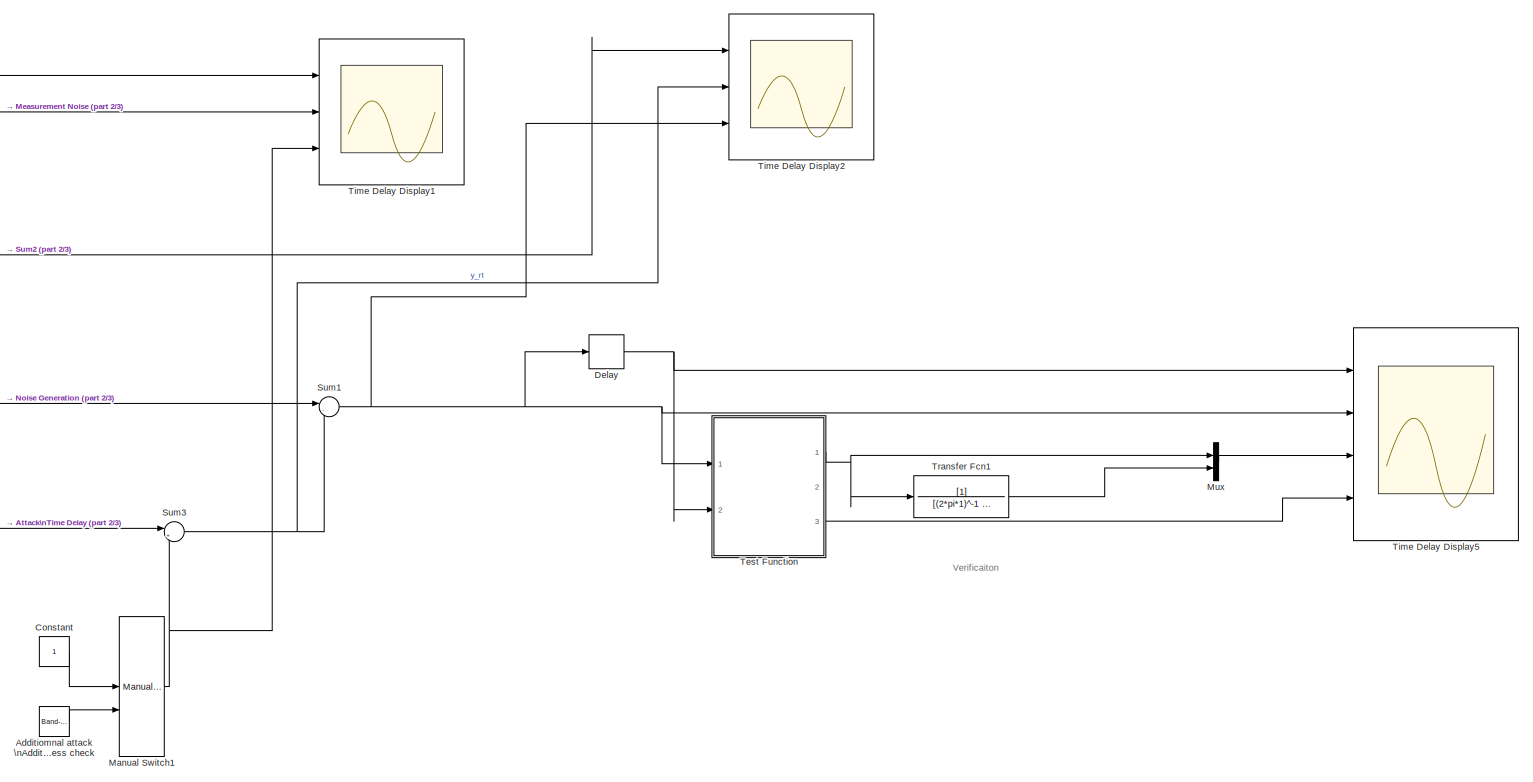
[diagram: root canvas - part 1/3, right side, full height]
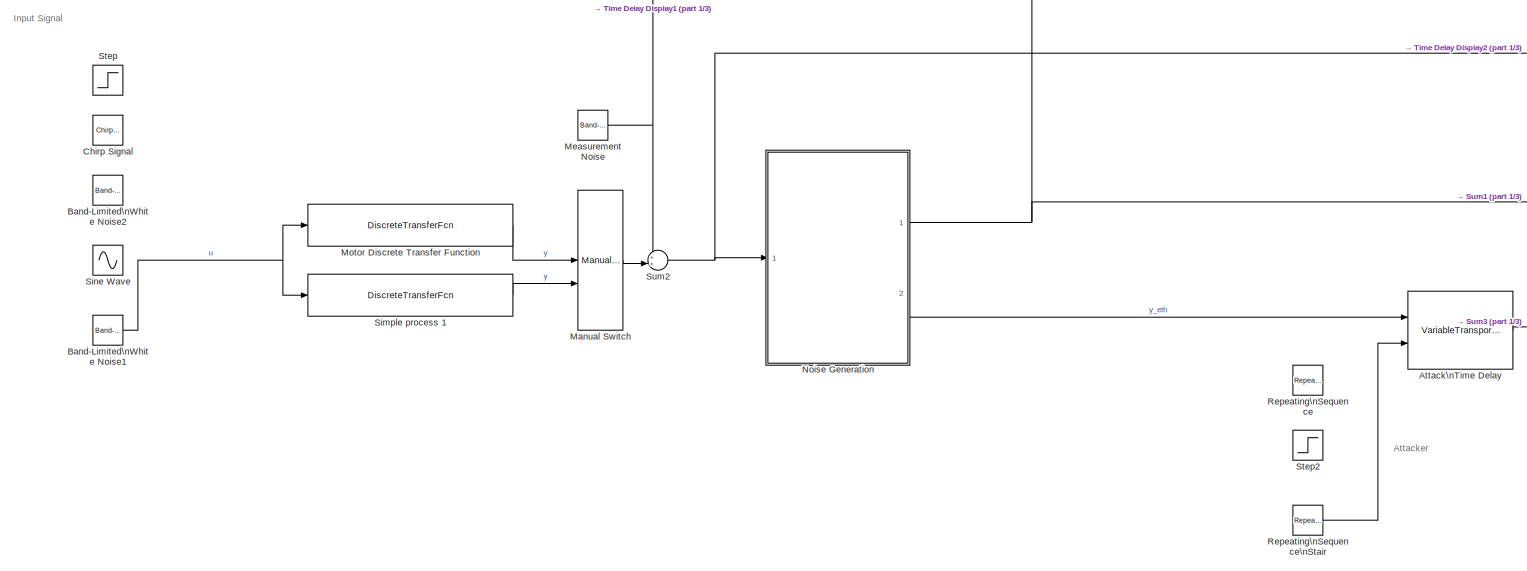
[diagram: root canvas - part 2/3, middle left region]
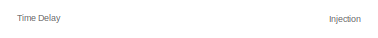
[diagram: root canvas - part 3/3, bottom center region]
MODEL simplified
KIND model
BLOCK [Reference] Additiomnal attack \nAdditive Noise \nRobustness check   REF=simulink/Sources/Band-Limited\nWhite Noise
  Cov = [1e-8]
  Ports = [0, 1]
  SID = 51
  SourceBlock = simulink/Sources/Band-Limited\nWhite Noise
  SourceType = Band-Limited White Noise.
  Ts = 1e-3
  VectorParams1D = on
  seed = [233241]
BLOCK [VariableTransportDelay] Attack\nTime Delay
  InitialOutput = 2e-3
  MaximumDelay = 100
  Ports = [2, 1]
  SID = 14
  ZeroDelay = on
BLOCK [Reference] Band-Limited\nWhite Noise1  REF=simulink/Sources/Band-Limited\nWhite Noise
  Cov = [1e-3]
  Ports = [0, 1]
  SID = 87
  SourceBlock = simulink/Sources/Band-Limited\nWhite Noise
  SourceType = Band-Limited White Noise.
  Ts = 1
  VectorParams1D = on
  seed = [23324]
BLOCK [Reference] Band-Limited\nWhite Noise2  REF=simulink/Sources/Band-Limited\nWhite Noise
  Cov = [1e-3]
  Ports = [0, 1]
  SID = 53
  SourceBlock = simulink/Sources/Band-Limited\nWhite Noise
  SourceType = Band-Limited White Noise.
  Ts = 1e-2
  VectorParams1D = on
  seed = [23324]
BLOCK [Reference] Chirp Signal  REF=simulink/Sources/Chirp Signal
  Ports = [0, 1]
  SID = 65
  SourceBlock = simulink/Sources/Chirp Signal
  SourceType = chirp
  T = 300
  VectorParams1D = on
  f1 = 0.1
  f2 = 20*pi
BLOCK [Constant] Constant
  SID = 96
BLOCK [Delay] Delay
  DelayLength = 1
  InitialCondition = 0
  InputPortMap = u0
  Ports = [1, 1]
  SID = 88
BLOCK [ManualSwitch] Manual Switch
  SID = 74
BLOCK [ManualSwitch] Manual Switch1
  SID = 95
BLOCK [Reference] Measurement Noise  REF=simulink/Sources/Band-Limited\nWhite Noise
  Cov = [1e-9]
  Ports = [0, 1]
  SID = 30
  SourceBlock = simulink/Sources/Band-Limited\nWhite Noise
  SourceType = Band-Limited White Noise.
  Ts = 1e-3
  VectorParams1D = on
  seed = [23341]
BLOCK [DiscreteTransferFcn] Motor Discrete Transfer Function
  Denominator = [1, -1.997, 0.997,- 1.184e-10]
  InputPortMap = u0
  Numerator = [4.99e-05, 5.875e-05, 2.081e-07]
  Ports = [1, 1]
  SID = 72
  SampleTime = 1e-3
BLOCK [Mux] Mux
  DisplayOption = bar
  Inputs = 2
  Ports = [2, 1]
  SID = 93
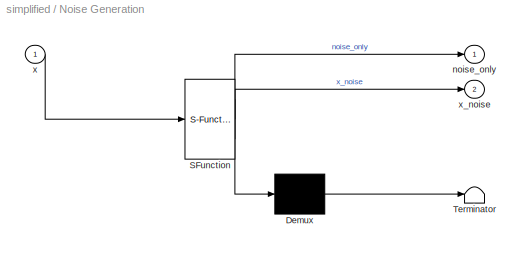
BLOCK [SubSystem] Noise Generation
  ErrorFcn = Stateflow.Translate.translate
  PermitHierarchicalResolution = ParametersOnly
  Ports = [1, 2]
  RequestExecContextInheritance = off
  SFBlockType = MATLAB Function
  SID = 80
  TreatAsAtomicUnit = on
  Variant = off
BLOCK [Demux] Noise Generation/ Demux 
  Outputs = 1
  Ports = [1, 1]
  SID = 80::20
BLOCK [S-Function] Noise Generation/ SFunction 
  EnableBusSupport = on
  FunctionName = sf_sfun
  PortCounts = [1 3]
  Ports = [1, 3]
  SFunctionDeploymentMode = off
  SID = 80::19
  Tag = Stateflow S-Function simplified 1
BLOCK [Terminator] Noise Generation/ Terminator 
  SID = 80::21
BLOCK [Outport] Noise Generation/noise_only
  IconDisplay = Port number
  SID = 80::47
BLOCK [Inport] Noise Generation/x
  IconDisplay = Port number
  SID = 80::53
BLOCK [Outport] Noise Generation/x_noise
  IconDisplay = Port number
  Port = 2
  SID = 80::24
BLOCK [Reference] Repeating\nSequence  REF=simulink/Sources/Repeating\nSequence
  Ports = [0, 1]
  SID = 76
  SourceBlock = simulink/Sources/Repeating\nSequence
  SourceType = Repeating table
  rep_seq_t = [1:5:100]
  rep_seq_y = [1:1:20]*1e-3
BLOCK [Reference] Repeating\nSequence\nStair  REF=simulink/Sources/Repeating\nSequence\nStair
  ConRadixGroup = Best Precision: Vector-wise
  LockScale = off
  OutDataType = fixdt(0,8)
  OutDataTypeStr = double
  OutMax = []
  OutMin = []
  OutScaling = 2^-12
  OutValues = [2e-3 0e-3 15e-3 4e-3 0e-3 8e-3].'
  OutputDataTypeScalingMode = double
  Ports = [0, 1]
  SID = 61
  SourceBlock = simulink/Sources/Repeating\nSequence\nStair
  SourceType = Repeating Sequence Stair
  tsamp = 40
BLOCK [DiscreteTransferFcn] Simple process 1
  Denominator = [1, -0.9983]
  InputPortMap = u0
  Numerator = [0.001665]
  Ports = [1, 1]
  SID = 63
  SampleTime = 1e-3
BLOCK [Sin] Sine Wave
  Frequency = 0.1*pi
  Ports = [0, 1]
  SID = 54
  SampleTime = 0
BLOCK [Step] Step
  SID = 44
  SampleTime = 0
  Time = 3
BLOCK [Step] Step2
  After = 5e-3
  SID = 59
  SampleTime = 0
  Time = 10
BLOCK [Sum] Sum1
  IconShape = round
  InputSameDT = off
  Inputs = |-+
  OutDataTypeStr = Inherit: Inherit via internal rule
  Ports = [2, 1]
  SID = 83
  SaturateOnIntegerOverflow = off
BLOCK [Sum] Sum2
  IconShape = round
  InputSameDT = off
  Inputs = ++|
  OutDataTypeStr = Inherit: Inherit via internal rule
  Ports = [2, 1]
  SID = 31
  SaturateOnIntegerOverflow = off
BLOCK [Sum] Sum3
  IconShape = round
  InputSameDT = off
  Inputs = |++
  OutDataTypeStr = Inherit: Inherit via internal rule
  Ports = [2, 1]
  SID = 52
  SaturateOnIntegerOverflow = off
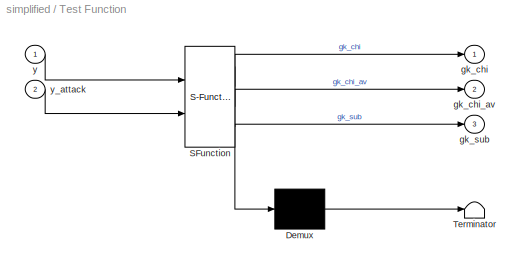
BLOCK [SubSystem] Test Function
  ErrorFcn = Stateflow.Translate.translate
  PermitHierarchicalResolution = ParametersOnly
  Ports = [2, 3]
  RequestExecContextInheritance = off
  SFBlockType = MATLAB Function
  SID = 89
  SystemSampleTime = 1e-3
  TreatAsAtomicUnit = on
  Variant = off
BLOCK [Demux] Test Function/ Demux 
  Outputs = 1
  Ports = [1, 1]
  SID = 89::20
BLOCK [S-Function] Test Function/ SFunction 
  EnableBusSupport = on
  FunctionName = sf_sfun
  PortCounts = [2 4]
  Ports = [2, 4]
  SFunctionDeploymentMode = off
  SID = 89::19
  Tag = Stateflow S-Function simplified 2
BLOCK [Terminator] Test Function/ Terminator 
  SID = 89::21
BLOCK [Outport] Test Function/gk_chi
  IconDisplay = Port number
  SID = 89::5
BLOCK [Outport] Test Function/gk_chi_av
  IconDisplay = Port number
  Port = 2
  SID = 89::24
BLOCK [Outport] Test Function/gk_sub
  IconDisplay = Port number
  Port = 3
  SID = 89::23
BLOCK [Inport] Test Function/y
  IconDisplay = Port number
  SID = 89::1
BLOCK [Inport] Test Function/y_attack
  IconDisplay = Port number
  Port = 2
  SID = 89::22
BLOCK [Scope] Time Delay Display1
  NumInputPorts = 3
  Ports = [3]
  SID = 94
  ScopeSpecificationString = Simulink.scopes.TimeScopeBlockCfg('CurrentConfiguration', extmgr.ConfigurationSet(extmgr.Configuration('Core','General UI',true),extmgr.Configuration('Core','Source UI',true),extmgr.Configuration('Sources','WiredSimulink',true),extmgr.Configuration('Visuals','Time Domain',true,'SerializedDisplays',{struct('MinYLimReal','-0.00375','MaxYLimReal','0.00375','YLabelReal','','MinYLimMag','0.00000','MaxY...<+2944ch>
BLOCK [Scope] Time Delay Display2
  NumInputPorts = 3
  Ports = [3]
  SID = 103
  ScopeSpecificationString = Simulink.scopes.TimeScopeBlockCfg('CurrentConfiguration', extmgr.ConfigurationSet(extmgr.Configuration('Core','General UI',true),extmgr.Configuration('Core','Source UI',true),extmgr.Configuration('Sources','WiredSimulink',true,'DataLoggingVariableName','ScopeData1'),extmgr.Configuration('Visuals','Time Domain',true,'SerializedDisplays',{struct('MinYLimReal','-43.03703','MaxYLimReal','15.22257','YL...<+3020ch>
BLOCK [Scope] Time Delay Display5
  NumInputPorts = 4
  Ports = [4]
  SID = 85
  ScopeSpecificationString = Simulink.scopes.TimeScopeBlockCfg('CurrentConfiguration', extmgr.ConfigurationSet(extmgr.Configuration('Core','General UI',true),extmgr.Configuration('Core','Source UI',true),extmgr.Configuration('Sources','WiredSimulink',true,'DataLoggingVariableName','ScopeData1'),extmgr.Configuration('Visuals','Time Domain',true,'SerializedDisplays',{struct('MinYLimReal','-15.48938','MaxYLimReal','13.27283','YL...<+3629ch>
BLOCK [TransferFcn] Transfer Fcn1
  Denominator = [(2*pi*1)^-1 1]
  SID = 92
ANNOTATION (root): \n \n Injection
ANNOTATION (root): \n \n Verificaiton
ANNOTATION (root): \n \n Attacker
ANNOTATION (root): \n \n Input Signal
ANNOTATION (root): \n \n Time Delay
LINE Additiomnal attack \nAdditive Noise \nRobustness check :1 -> Manual Switch1:2
LINE Attack\nTime Delay:1 -> Sum3:1
NET Band-Limited\nWhite Noise1:1 -> Motor Discrete Transfer Function:1, Simple process 1:1
LINE Constant:1 -> Manual Switch1:1
NET Delay:1 -> Test Function:2, Time Delay Display5:1
NET Manual Switch1:1 -> Sum3:2, Time Delay Display1:3
LINE Manual Switch:1 -> Sum2:2
NET Measurement Noise:1 -> Sum2:1, Time Delay Display1:2
LINE Motor Discrete Transfer Function:1 -> Manual Switch:1
LINE Mux:1 -> Time Delay Display5:3
LINE Noise Generation/ Demux :1 -> Noise Generation/ Terminator :1
LINE Noise Generation/ SFunction :1 -> Noise Generation/ Demux :1
LINE Noise Generation/ SFunction :2 -> Noise Generation/noise_only:1
LINE Noise Generation/ SFunction :3 -> Noise Generation/x_noise:1
LINE Noise Generation/x:1 -> Noise Generation/ SFunction :1
NET Noise Generation:1 -> Sum1:1, Time Delay Display1:1
LINE Noise Generation:2 -> Attack\nTime Delay:1
LINE Repeating\nSequence\nStair:1 -> Attack\nTime Delay:2
LINE Simple process 1:1 -> Manual Switch:2
NET Sum1:1 -> Delay:1, Test Function:1, Time Delay Display2:3, Time Delay Display5:2
NET Sum2:1 -> Noise Generation:1, Time Delay Display2:1
NET Sum3:1 -> Sum1:2, Time Delay Display2:2
LINE Test Function/ Demux :1 -> Test Function/ Terminator :1
LINE Test Function/ SFunction :1 -> Test Function/ Demux :1
LINE Test Function/ SFunction :2 -> Test Function/gk_chi:1
LINE Test Function/ SFunction :3 -> Test Function/gk_chi_av:1
LINE Test Function/ SFunction :4 -> Test Function/gk_sub:1
LINE Test Function/y:1 -> Test Function/ SFunction :1
LINE Test Function/y_attack:1 -> Test Function/ SFunction :2
NET Test Function:1 -> Mux:1, Transfer Fcn1:1
LINE Test Function:3 -> Time Delay Display5:4
LINE Transfer Fcn1:1 -> Mux:2
note: NET lines group one-source signal fan-out (src -> all destinations, sorted); 1:1 wires keep LINE
CHART Noise Generation states=1 transitions=1
  STATE_LABEL 'eML_blk_kernel()'
CHART Test Function states=1 transitions=1
  STATE_LABEL 'eML_blk_kernel()'
